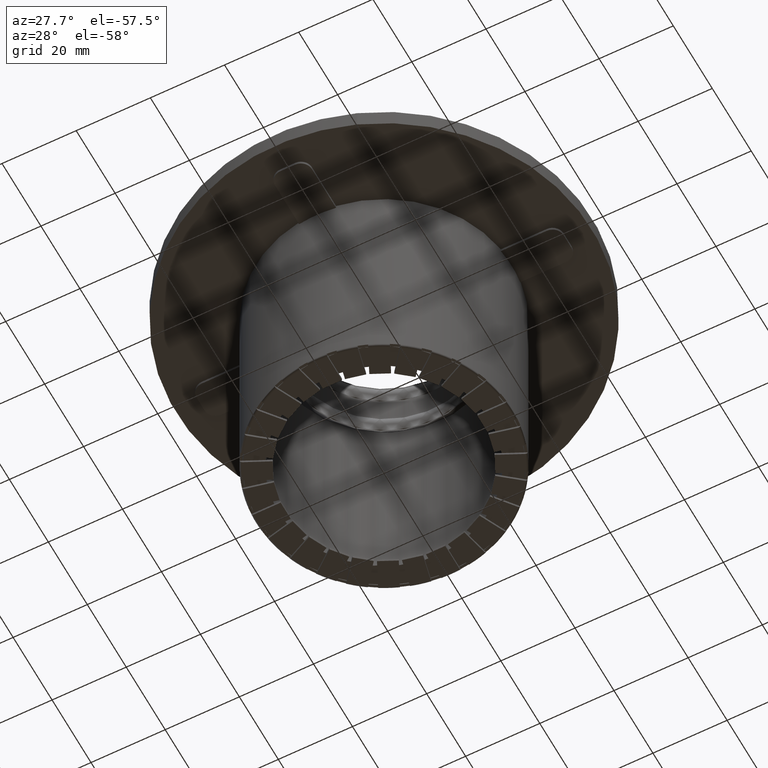
[diagram: clean part render]
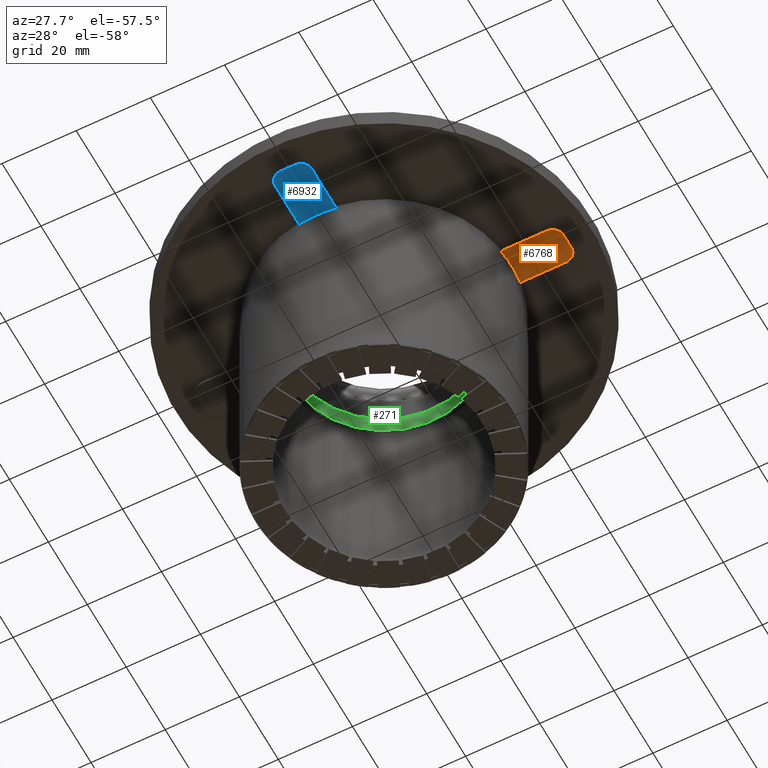
[diagram: same view with three faces highlighted in distinct colors, each labeled with its STEP entity id]
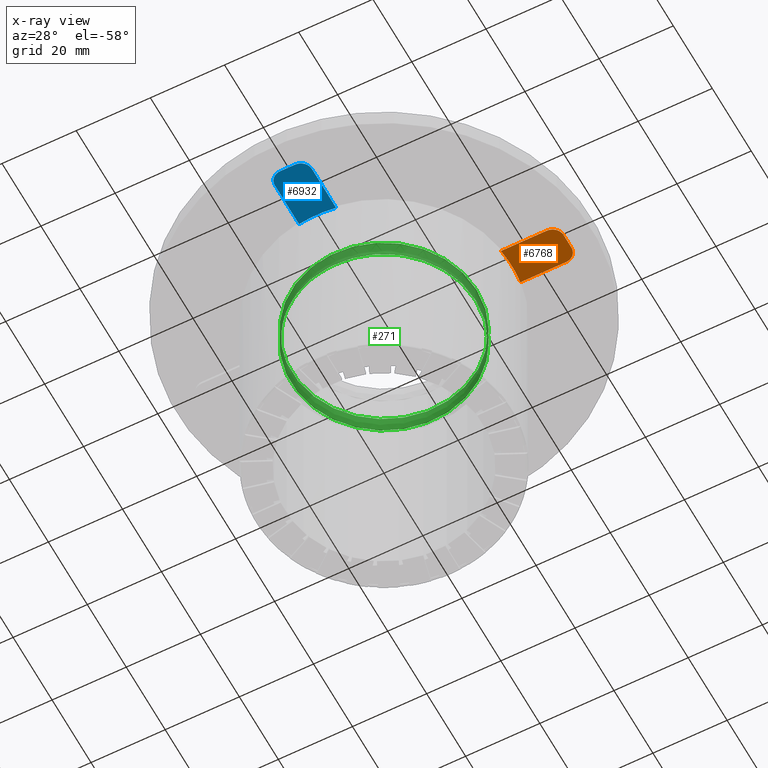
[diagram: x-ray of the same camera — body ghosted, the three highlighted faces saturated]
A machine part, auxiliary view with three faces highlighted in distinct colors.
The next image is the same camera in x-ray (body ghosted, the three faces saturated) — at least one of them is partly hidden behind the body in this view.
Their STEP definitions:

[orange] entity #6768 — the highlighted planar face has unit normal (0, 0, 1).
#1281=CARTESIAN_POINT('',(34.13575837739657,-5.000000000000004,63.499999999999979));
#1282=VERTEX_POINT('',#1281);
#1402=CARTESIAN_POINT('',(34.13575837739657,4.999999999999995,63.499999999999979));
#1403=VERTEX_POINT('',#1402);
#1410=CARTESIAN_POINT('',(0.0,0.0,63.499999999999979));
#1411=DIRECTION('',(0.0,0.0,-1.0));
#1412=DIRECTION('',(-1.0,0.0,0.0));
#1413=AXIS2_PLACEMENT_3D('',#1410,#1411,#1412);
#1414=CIRCLE('',#1413,34.5);
#1415=EDGE_CURVE('',#1403,#1282,#1414,.T.);
#6610=CARTESIAN_POINT('',(46.5,-5.000000000000007,63.499999999999979));
#6611=VERTEX_POINT('',#6610);
#6612=CARTESIAN_POINT('',(49.500000000000014,-2.000000000000006,63.499999999999979));
#6613=VERTEX_POINT('',#6612);
#6614=CARTESIAN_POINT('',(46.5,-2.000000000000005,63.5));
#6615=DIRECTION('',(0.0,0.0,1.0));
#6616=DIRECTION('',(0.0,-1.0,0.0));
#6617=AXIS2_PLACEMENT_3D('',#6614,#6615,#6616);
#6618=CIRCLE('',#6617,2.999999999999991);
#6619=EDGE_CURVE('',#6611,#6613,#6618,.T.);
#6652=CARTESIAN_POINT('',(49.500000000000014,1.999999999999994,63.499999999999979));
#6653=VERTEX_POINT('',#6652);
#6654=CARTESIAN_POINT('',(49.500000000000014,-2.000000000000006,63.5));
#6655=DIRECTION('',(0.0,1.0,0.0));
#6656=VECTOR('',#6655,4.0);
#6657=LINE('',#6654,#6656);
#6658=EDGE_CURVE('',#6613,#6653,#6657,.T.);
#6683=CARTESIAN_POINT('',(46.5,4.999999999999995,63.499999999999979));
#6684=VERTEX_POINT('',#6683);
#6685=CARTESIAN_POINT('',(46.5,1.999999999999994,63.5));
#6686=DIRECTION('',(0.0,0.0,1.0));
#6687=DIRECTION('',(1.0,0.0,0.0));
#6688=AXIS2_PLACEMENT_3D('',#6685,#6686,#6687);
#6689=CIRCLE('',#6688,3.000000000000002);
#6690=EDGE_CURVE('',#6653,#6684,#6689,.T.);
#6716=CARTESIAN_POINT('',(46.5,4.999999999999995,63.5));
#6717=DIRECTION('',(-1.0,0.0,0.0));
#6718=VECTOR('',#6717,12.36424162260343);
#6719=LINE('',#6716,#6718);
#6720=EDGE_CURVE('',#6684,#1403,#6719,.T.);
#6738=CARTESIAN_POINT('',(34.13575837739657,-5.000000000000004,63.5));
#6739=DIRECTION('',(1.0,0.0,0.0));
#6740=VECTOR('',#6739,12.36424162260343);
#6741=LINE('',#6738,#6740);
#6742=EDGE_CURVE('',#1282,#6611,#6741,.T.);
#6755=CARTESIAN_POINT('',(41.412775178141032,-3.721623E-015,63.499999999999979));
#6756=DIRECTION('',(0.0,0.0,1.0));
#6757=DIRECTION('',(0.0,-1.0,0.0));
#6758=AXIS2_PLACEMENT_3D('',#6755,#6756,#6757);
#6759=PLANE('',#6758);
#6760=ORIENTED_EDGE('',*,*,#6619,.F.);
#6761=ORIENTED_EDGE('',*,*,#6742,.F.);
#6762=ORIENTED_EDGE('',*,*,#1415,.F.);
#6763=ORIENTED_EDGE('',*,*,#6720,.F.);
#6764=ORIENTED_EDGE('',*,*,#6690,.F.);
#6765=ORIENTED_EDGE('',*,*,#6658,.F.);
#6766=EDGE_LOOP('',(#6760,#6761,#6762,#6763,#6764,#6765));
#6767=FACE_OUTER_BOUND('',#6766,.T.);
#6768=ADVANCED_FACE('',(#6767),#6759,.F.);

[blue] entity #6932 — the highlighted planar face has unit normal (0, 0, 1).
#1300=CARTESIAN_POINT('',(4.999999999999996,-34.13575837739657,63.499999999999979));
#1301=VERTEX_POINT('',#1300);
#1308=CARTESIAN_POINT('',(-5.000000000000002,-34.13575837739657,63.499999999999979));
#1309=VERTEX_POINT('',#1308);
#1310=CARTESIAN_POINT('',(0.0,0.0,63.499999999999979));
#1311=DIRECTION('',(0.0,0.0,-1.0));
#1312=DIRECTION('',(-1.0,0.0,0.0));
#1313=AXIS2_PLACEMENT_3D('',#1310,#1311,#1312);
#1314=CIRCLE('',#1313,34.5);
#1315=EDGE_CURVE('',#1301,#1309,#1314,.T.);
#6774=CARTESIAN_POINT('',(-5.000000000000004,-46.5,63.499999999999979));
#6775=VERTEX_POINT('',#6774);
#6776=CARTESIAN_POINT('',(-2.000000000000003,-49.500000000000014,63.499999999999979));
#6777=VERTEX_POINT('',#6776);
#6778=CARTESIAN_POINT('',(-2.000000000000002,-46.5,63.5));
#6779=DIRECTION('',(0.0,0.0,1.0));
#6780=DIRECTION('',(-1.0,0.0,0.0));
#6781=AXIS2_PLACEMENT_3D('',#6778,#6779,#6780);
#6782=CIRCLE('',#6781,2.999999999999991);
#6783=EDGE_CURVE('',#6775,#6777,#6782,.T.);
#6816=CARTESIAN_POINT('',(1.999999999999997,-49.500000000000014,63.499999999999979));
#6817=VERTEX_POINT('',#6816);
#6818=CARTESIAN_POINT('',(-2.000000000000003,-49.500000000000014,63.5));
#6819=DIRECTION('',(1.0,0.0,0.0));
#6820=VECTOR('',#6819,4.0);
#6821=LINE('',#6818,#6820);
#6822=EDGE_CURVE('',#6777,#6817,#6821,.T.);
#6847=CARTESIAN_POINT('',(4.999999999999997,-46.5,63.499999999999979));
#6848=VERTEX_POINT('',#6847);
#6849=CARTESIAN_POINT('',(1.999999999999997,-46.5,63.5));
#6850=DIRECTION('',(0.0,0.0,1.0));
#6851=DIRECTION('',(0.0,-1.0,0.0));
#6852=AXIS2_PLACEMENT_3D('',#6849,#6850,#6851);
#6853=CIRCLE('',#6852,3.000000000000002);
#6854=EDGE_CURVE('',#6817,#6848,#6853,.T.);
#6880=CARTESIAN_POINT('',(4.999999999999997,-46.5,63.5));
#6881=DIRECTION('',(0.0,1.0,0.0));
#6882=VECTOR('',#6881,12.36424162260343);
#6883=LINE('',#6880,#6882);
#6884=EDGE_CURVE('',#6848,#1301,#6883,.T.);
#6902=CARTESIAN_POINT('',(-5.000000000000002,-34.13575837739657,63.5));
#6903=DIRECTION('',(0.0,-1.0,0.0));
#6904=VECTOR('',#6903,12.36424162260343);
#6905=LINE('',#6902,#6904);
#6906=EDGE_CURVE('',#1309,#6775,#6905,.T.);
#6919=CARTESIAN_POINT('',(-1.185822E-015,-41.412775178141032,63.499999999999979));
#6920=DIRECTION('',(0.0,0.0,1.0));
#6921=DIRECTION('',(-1.0,0.0,0.0));
#6922=AXIS2_PLACEMENT_3D('',#6919,#6920,#6921);
#6923=PLANE('',#6922);
#6924=ORIENTED_EDGE('',*,*,#6783,.F.);
#6925=ORIENTED_EDGE('',*,*,#6906,.F.);
#6926=ORIENTED_EDGE('',*,*,#1315,.F.);
#6927=ORIENTED_EDGE('',*,*,#6884,.F.);
#6928=ORIENTED_EDGE('',*,*,#6854,.F.);
#6929=ORIENTED_EDGE('',*,*,#6822,.F.);
#6930=EDGE_LOOP('',(#6924,#6925,#6926,#6927,#6928,#6929));
#6931=FACE_OUTER_BOUND('',#6930,.T.);
#6932=ADVANCED_FACE('',(#6931),#6923,.F.);

[green] entity #271 — the highlighted face is a SurfaceOfRevolution surface.
#234=CARTESIAN_POINT('',(25.000000000000004,-2.820810E-014,57.299999999999983));
#235=DIRECTION('',(0.0,-1.0,0.0));
#236=DIRECTION('',(0.0,0.0,1.0));
#237=AXIS2_PLACEMENT_3D('',#234,#235,#236);
#238=ELLIPSE('',#237,2.5,0.5);
#239=CARTESIAN_POINT('',(4.633465E-015,-2.804680E-014,54.803074999999986));
#240=DIRECTION('',(1.204647E-016,-6.460021E-017,1.0));
#241=AXIS1_PLACEMENT('',#239,#240);
#242=SURFACE_OF_REVOLUTION('',#238,#241);
#243=CARTESIAN_POINT('',(25.000000000000004,-2.804660E-014,54.799999999999983));
#244=VERTEX_POINT('',#243);
#245=CARTESIAN_POINT('',(25.000000000000007,-2.836960E-014,59.799999999999983));
#246=VERTEX_POINT('',#245);
#247=CARTESIAN_POINT('',(25.000000000000004,-2.820810E-014,57.299999999999983));
#248=DIRECTION('',(0.0,1.0,0.0));
#249=DIRECTION('',(0.0,0.0,1.0));
#250=AXIS2_PLACEMENT_3D('',#247,#248,#249);
#251=ELLIPSE('',#250,2.5,0.5);
#252=EDGE_CURVE('',#244,#246,#251,.T.);
#253=ORIENTED_EDGE('',*,*,#252,.T.);
#254=CARTESIAN_POINT('',(5.235418E-015,-2.836960E-014,59.799999999999983));
#255=DIRECTION('',(0.0,0.0,-1.0));
#256=DIRECTION('',(1.0,0.0,0.0));
#257=AXIS2_PLACEMENT_3D('',#254,#255,#256);
#258=CIRCLE('',#257,25.0);
#259=EDGE_CURVE('',#246,#246,#258,.T.);
#260=ORIENTED_EDGE('',*,*,#259,.F.);
#261=ORIENTED_EDGE('',*,*,#252,.F.);
#262=CARTESIAN_POINT('',(4.633094E-015,-2.804660E-014,54.799999999999983));
#263=DIRECTION('',(0.0,0.0,1.0));
#264=DIRECTION('',(1.0,0.0,0.0));
#265=AXIS2_PLACEMENT_3D('',#262,#263,#264);
#266=CIRCLE('',#265,25.0);
#267=EDGE_CURVE('',#244,#244,#266,.T.);
#268=ORIENTED_EDGE('',*,*,#267,.F.);
#269=EDGE_LOOP('',(#253,#260,#261,#268));
#270=FACE_OUTER_BOUND('',#269,.T.);
#271=ADVANCED_FACE('',(#270),#242,.T.);